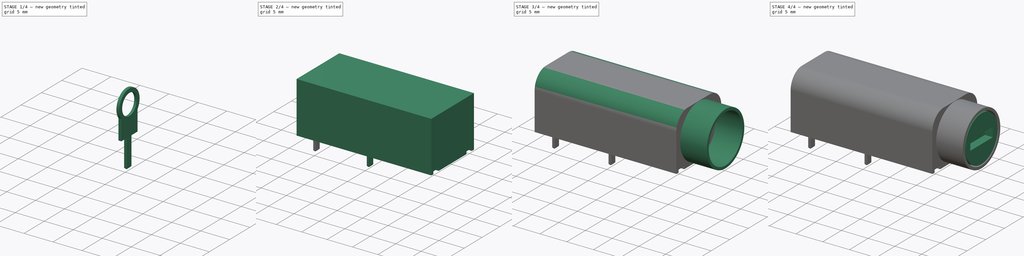
[diagram: build sequence overview — one tinted view per stage of 4, left to right]
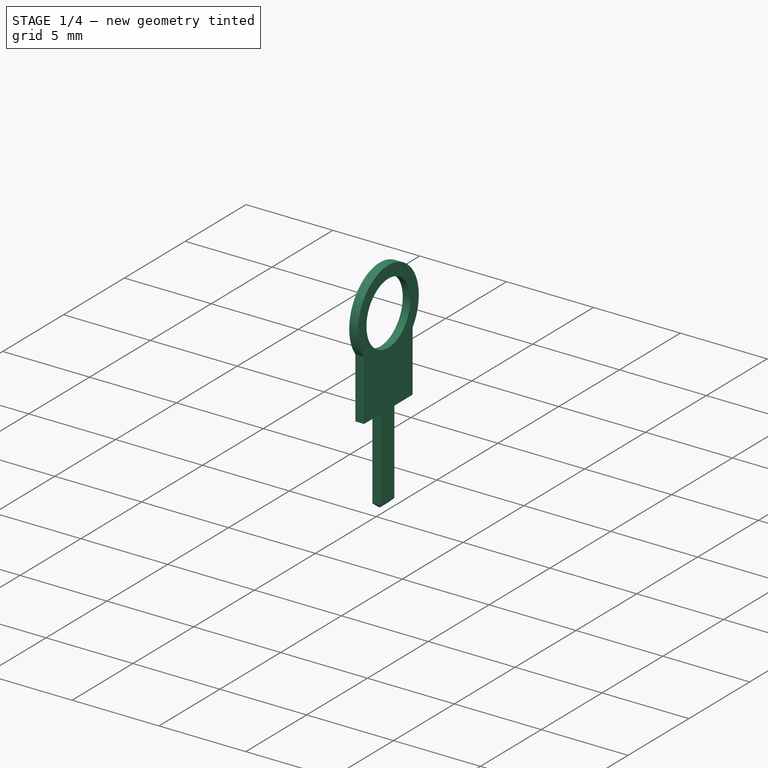
[diagram: stage 1 of 4 — iso view after this stage's code; geometry added in this stage tinted green]
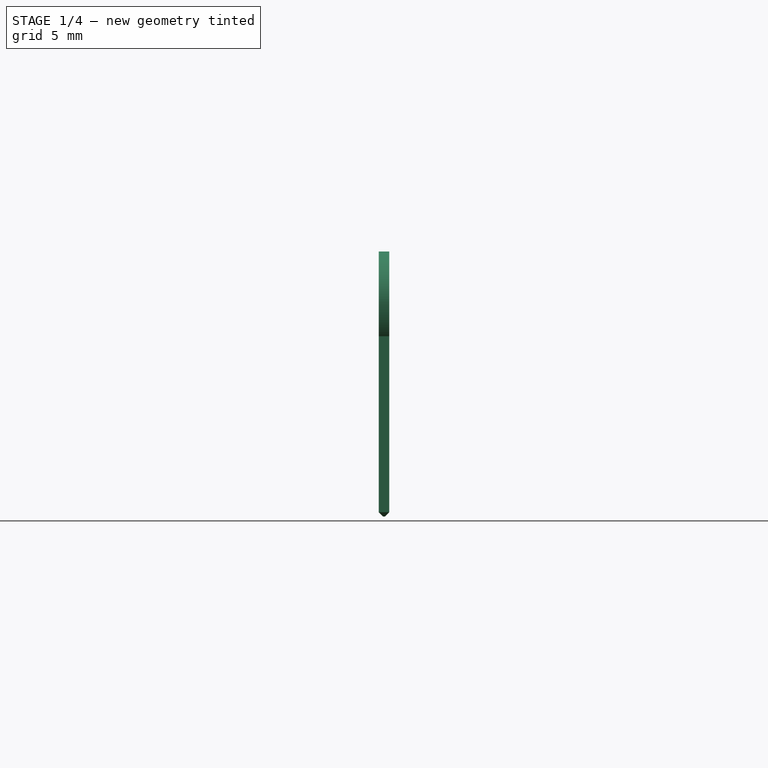
[diagram: stage 1 of 4 — front view after this stage's code; geometry added in this stage tinted green]
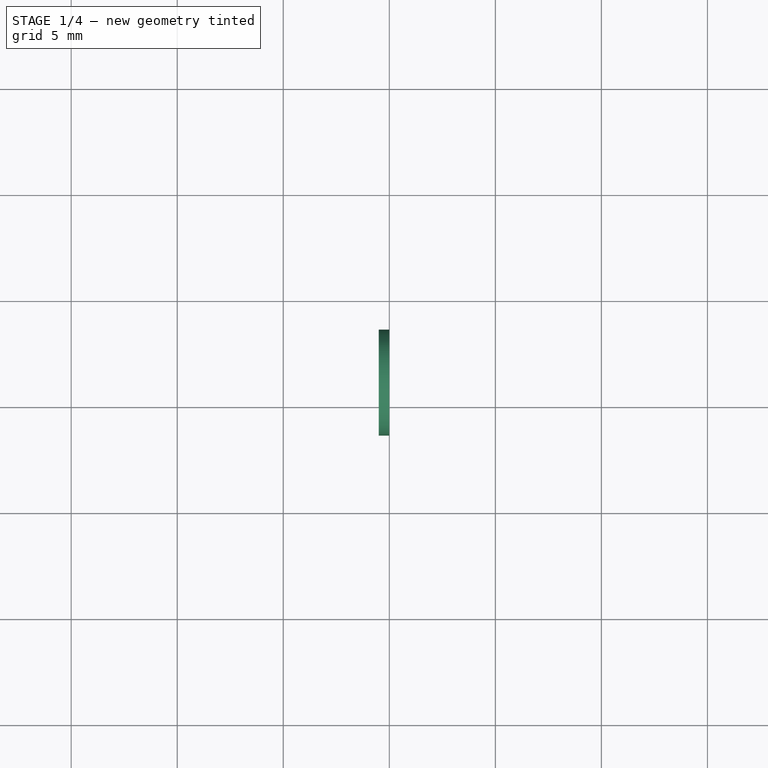
[diagram: stage 1 of 4 — top view after this stage's code; geometry added in this stage tinted green]
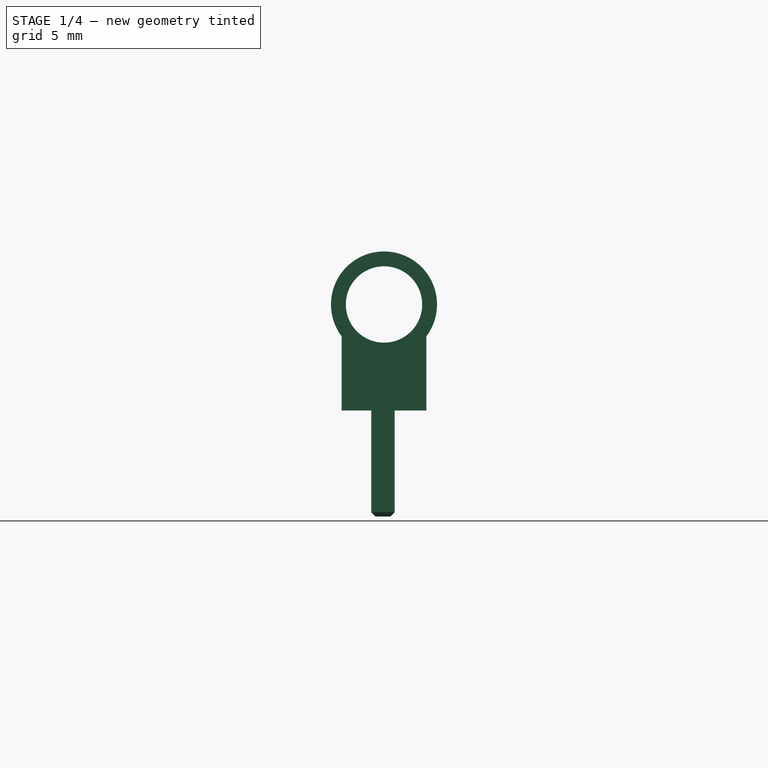
[diagram: stage 1 of 4 — right view after this stage's code; geometry added in this stage tinted green]
FCSTD DOCUMENT  (FreeCAD 0.17R12431 (Git))
Label: Fuseholder_Cylinder-5x20mm_Schurter_FAB_0031-355x_Horizontal_Closed
License: All rights reserved
LicenseURL: http://en.wikipedia.org/wiki/All_rights_reserved
objects: Sketcher::SketchObject×7, PartDesign::Pad×5, PartDesign::Body×3, PartDesign::Fillet×2, PartDesign::Pocket×2, PartDesign::ShapeBinder×2, PartDesign::Chamfer×2, App::Part×1
note: 30 computed .brp shape members not serialized (recipe doc carries the construction recipe); baked Part::Feature solids carry a one-line shape summary decoded from their .brp

FEATURE [PartDesign::ShapeBinder] CopyPocket
  Placement = pos=(0,0,0) rot=(0.57735,0.57735,0.57735;2.0944rad)
FEATURE [Sketcher::SketchObject] Sketch004
  MapMode = 5
  Placement = pos=(0,0,0) rot=(0.707107,0.707107,0;3.14159rad)
  Support = -> [CopyPocket]
  sketch-geometry (7):
    g0: LineSegment [constr] StartX=6 StartY=0 StartZ=0 EndX=6 EndY=10.25 EndZ=0
    g1: LineSegment [constr] StartX=6 StartY=10.25 StartZ=0 EndX=6 EndY=10.5 EndZ=0
    g2: LineSegment StartX=6 StartY=10.5 StartZ=0 EndX=6.55 EndY=10.5 EndZ=0
    g3: LineSegment StartX=6.55 StartY=10.5 StartZ=0 EndX=6.55 EndY=10 EndZ=0
    g4: LineSegment StartX=6.55 StartY=10 StartZ=0 EndX=5.45 EndY=10 EndZ=0
    g5: LineSegment StartX=5.45 StartY=10 StartZ=0 EndX=5.45 EndY=10.5 EndZ=0
    g6: LineSegment StartX=5.45 StartY=10.5 StartZ=0 EndX=6 EndY=10.5 EndZ=0
  constraints (20):
    c: PointOnObject(g0,g-1)
    c: Vertical(g0)
    c: DistanceY(g0,g0) = 10.25
    c: DistanceX(g-1,g0) = 6
    c: Coincident(g0,g1)
    c: Vertical(g1)
    c: Coincident(g1,g2)
    c: Horizontal(g2)
    c: Coincident(g2,g3)
    c: Vertical(g3)
    c: Coincident(g3,g4)
    c: Horizontal(g4)
    c: Coincident(g4,g5)
    c: Vertical(g5)
    c: Coincident(g5,g6)
    c: Coincident(g6,g1)
    c: Horizontal(g6)
    c: DistanceX(g4,g4) = 1.1
    c: DistanceY(g3,g3) = 0.5
    c: Symmetric(g2,g4,g0)
FEATURE [PartDesign::ShapeBinder] CopyPocket001
FEATURE [Sketcher::SketchObject] Sketch006
  MapMode = 5
  Placement = pos=(0,0,0) rot=(-0.57735,0.57735,0.57735;4.18879rad)
  Support = -> [CopyPocket001]
  sketch-geometry (9):
    g0: ArcOfCircle CenterX=-6 CenterY=5 CenterZ=0 NormalX=0 NormalY=0 NormalZ=1 AngleXU=0 Radius=2.5 StartAngle=5.63968 EndAngle=10.0683
    g1: LineSegment StartX=-8 StartY=3.5 StartZ=0 EndX=-8 EndY=0 EndZ=0
    g2: LineSegment StartX=-8 StartY=0 StartZ=0 EndX=-6.5 EndY=0 EndZ=0
    g3: LineSegment StartX=-6.5 StartY=0 StartZ=0 EndX=-6.5 EndY=-5 EndZ=0
    g4: LineSegment StartX=-6.5 StartY=-5 StartZ=0 EndX=-5.4 EndY=-5 EndZ=0
    g5: LineSegment StartX=-5.4 StartY=-5 StartZ=0 EndX=-5.4 EndY=0 EndZ=0
    g6: LineSegment StartX=-5.4 StartY=0 StartZ=0 EndX=-4 EndY=0 EndZ=0
    g7: LineSegment StartX=-4 StartY=0 StartZ=0 EndX=-4 EndY=3.5 EndZ=0
    g8: Circle CenterX=-6 CenterY=5 CenterZ=0 NormalX=0 NormalY=0 NormalZ=1 AngleXU=0 Radius=1.8
  constraints (27):
    c: DistanceX(g0,g-1) = 6
    c: DistanceY(g-1,g0) = 5
    c: Radius(g0) = 2.5
    c: PointOnObject(g1,g-1)
    c: Vertical(g1)
    c: Coincident(g1,g2)
    c: PointOnObject(g2,g-1)
    c: Coincident(g2,g3)
    c: Vertical(g3)
    c: Coincident(g3,g4)
    c: Horizontal(g4)
    c: Coincident(g4,g5)
    c: PointOnObject(g5,g-1)
    c: Vertical(g5)
    c: Coincident(g5,g6)
    c: PointOnObject(g6,g-1)
    c: Coincident(g6,g7)
    c: Vertical(g7)
    c: DistanceX(g1,g6) = 4
    c: DistanceX(g4,g4) = 1.1
    c: DistanceY(g3,g3) = 5
    c: Coincident(g0,g7)
    c: Coincident(g0,g1)
    c: DistanceX(g1,g2) = 1.5
    c: Equal(g1,g7)
    c: Coincident(g8,g0)
    c: Radius(g8) = 1.8
FEATURE [PartDesign::Pad] Pad004
  Length = 0.5
  Length2 = 100
  Profile = -> Sketch006
  Type = 0
FEATURE [PartDesign::Body] Body002  label="Pin 2"
  Group = -> [CopyPocket,Sketch004,Pad005,Chamfer]
  Origin = -> Origin003
  Tip = -> Chamfer
FEATURE [PartDesign::Fillet] Fillet001
  Base = -> Pad004 [Edge27]
  BaseFeature = -> Pad004
  Radius = 0.15
FEATURE [PartDesign::Chamfer] Chamfer001
  Base = -> Fillet001 [Face9]
  BaseFeature = -> Fillet001
  Size = 0.2
FEATURE [PartDesign::Body] Body003  label="Pin 1"
  Group = -> [CopyPocket001,Sketch006,Pad004,Fillet001,Chamfer001]
  Origin = -> Origin004
  Placement = pos=(0.5,0,0) rot=(0,0,1;0rad)
  Tip = -> Chamfer001
FEATURE [App::Part] Part  label="Fuseholder"
  Group = -> [Body,Body002,Body003]
  License = CC BY 3.0
  LicenseURL = http://creativecommons.org/licenses/by/3.0/
  Origin = -> Origin
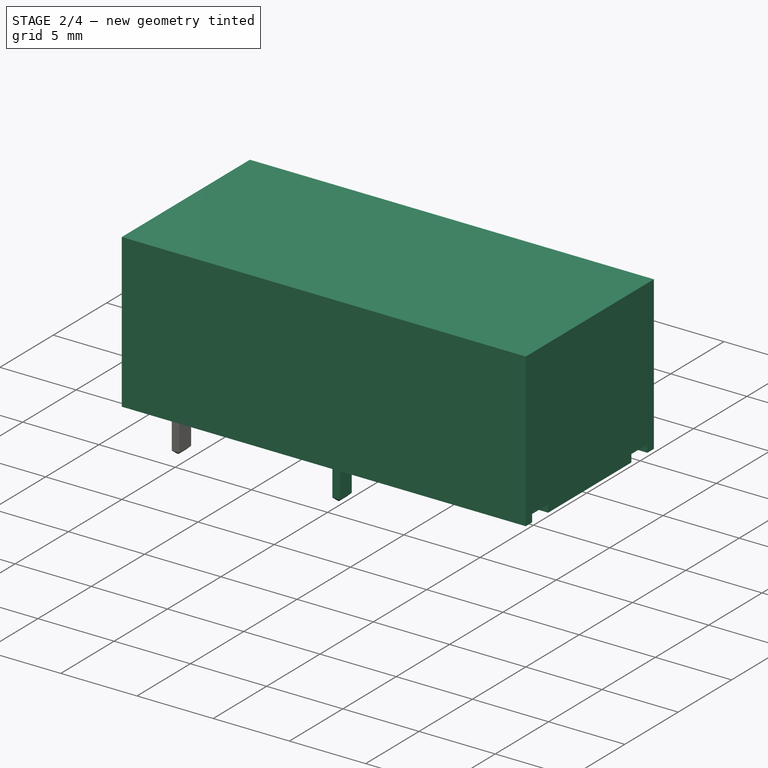
[diagram: stage 2 of 4 — iso view after this stage's code; geometry added in this stage tinted green]
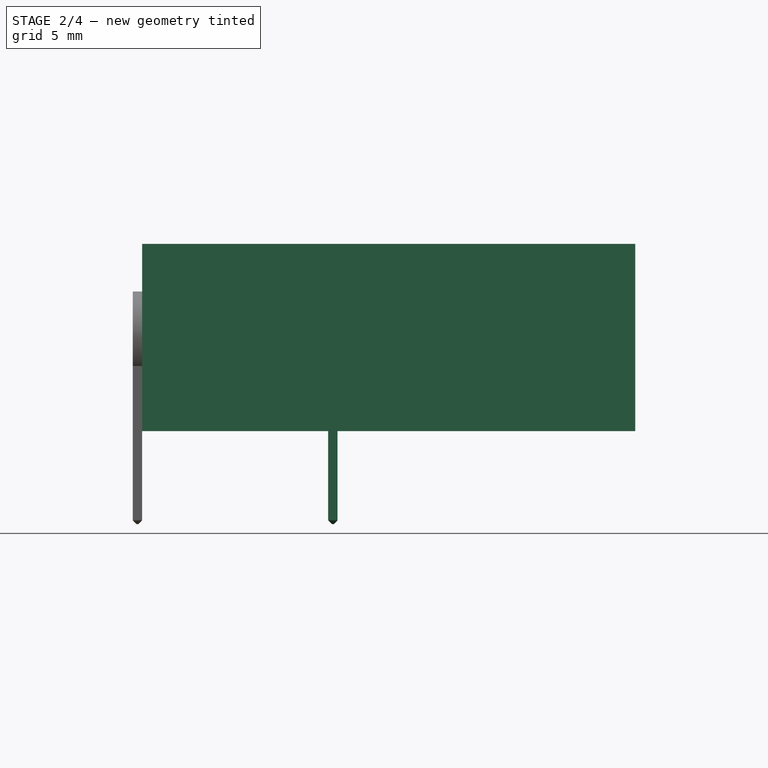
[diagram: stage 2 of 4 — front view after this stage's code; geometry added in this stage tinted green]
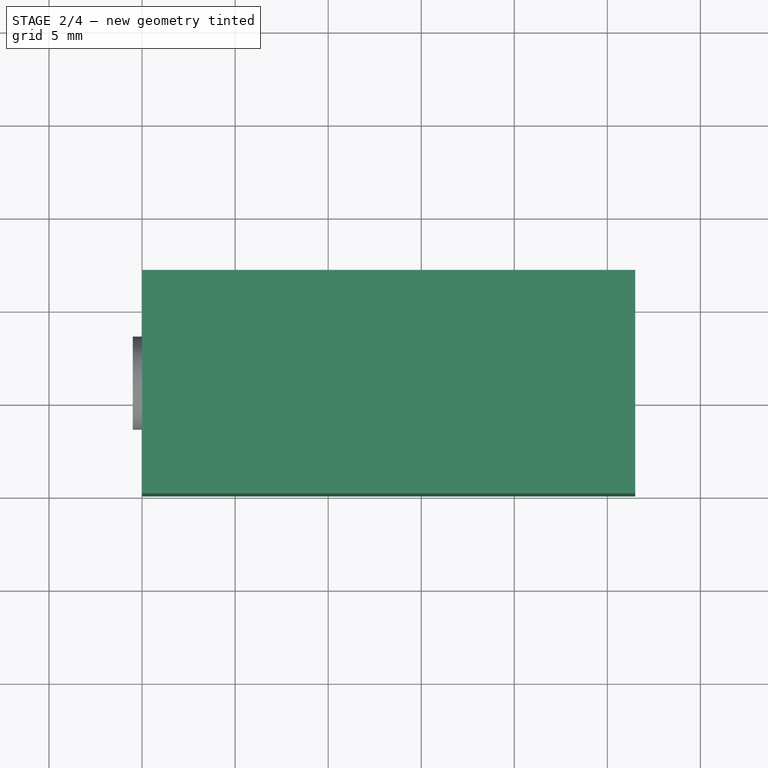
[diagram: stage 2 of 4 — top view after this stage's code; geometry added in this stage tinted green]
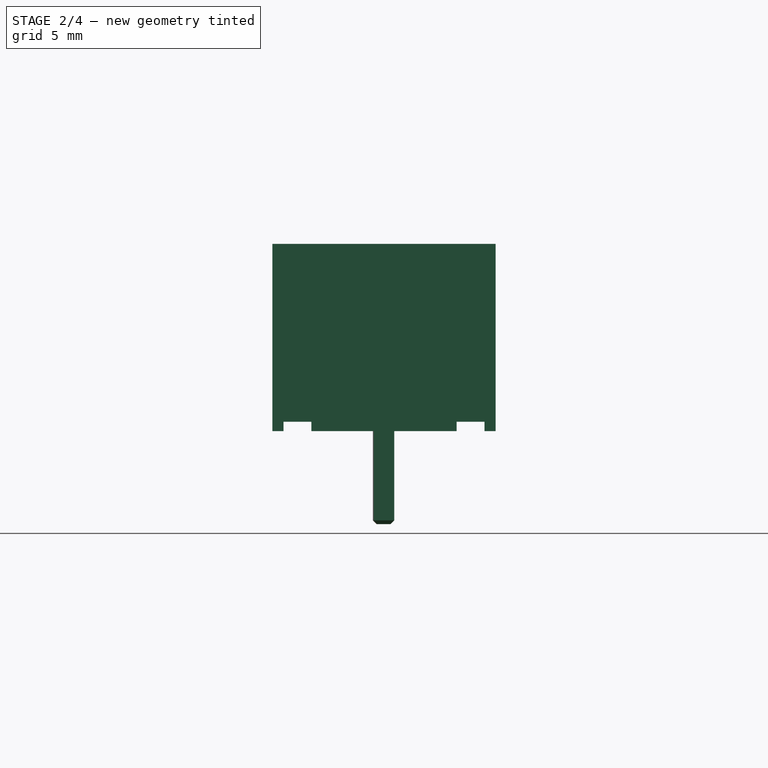
[diagram: stage 2 of 4 — right view after this stage's code; geometry added in this stage tinted green]
FEATURE [Sketcher::SketchObject] Sketch
  MapMode = 5
  Placement = pos=(0,0,0) rot=(0.57735,0.57735,0.57735;2.0944rad)
  Support = -> [YZ_Plane001]
  sketch-geometry (12):
    g0: LineSegment StartX=0 StartY=0 StartZ=0 EndX=0.6 EndY=0 EndZ=0
    g1: LineSegment StartX=0.6 StartY=0 StartZ=0 EndX=0.6 EndY=0.5 EndZ=0
    g2: LineSegment StartX=0.6 StartY=0.5 StartZ=0 EndX=2.1 EndY=0.5 EndZ=0
    g3: LineSegment StartX=2.1 StartY=0.5 StartZ=0 EndX=2.1 EndY=0 EndZ=0
    g4: LineSegment StartX=2.1 StartY=0 StartZ=0 EndX=9.9 EndY=0 EndZ=0
    g5: LineSegment StartX=12 StartY=0 StartZ=0 EndX=12 EndY=10.06 EndZ=0
    g6: LineSegment StartX=12 StartY=10.06 StartZ=0 EndX=0 EndY=10.06 EndZ=0
    g7: LineSegment StartX=0 StartY=10.06 StartZ=0 EndX=0 EndY=0 EndZ=0
    g8: LineSegment StartX=9.9 StartY=0 StartZ=0 EndX=9.9 EndY=0.5 EndZ=0
    g9: LineSegment StartX=9.9 StartY=0.5 StartZ=0 EndX=11.4 EndY=0.5 EndZ=0
    g10: LineSegment StartX=11.4 StartY=0.5 StartZ=0 EndX=11.4 EndY=0 EndZ=0
    g11: LineSegment StartX=11.4 StartY=0 StartZ=0 EndX=12 EndY=0 EndZ=0
  constraints (34):
    c: Coincident(g-1,g0)
    c: PointOnObject(g0,g-1)
    c: Coincident(g0,g1)
    c: Vertical(g1)
    c: Coincident(g1,g2)
    c: Horizontal(g2)
    c: Coincident(g2,g3)
    c: Coincident(g3,g4)
    c: Horizontal(g4)
    c: Coincident(g11,g5)
    c: Vertical(g5)
    c: Coincident(g5,g6)
    c: PointOnObject(g6,g-2)
    c: Horizontal(g6)
    c: Coincident(g6,g7)
    c: Coincident(g7,g0)
    c: DistanceX(g6,g6) = 12
    c: DistanceY(g7,g7) = 10.06
    c: Vertical(g8)
    c: Coincident(g8,g9)
    c: Horizontal(g9)
    c: Coincident(g9,g10)
    c: Coincident(g4,g8)
    c: Coincident(g11,g10)
    c: Tangent(g4,g11)
    c: Equal(g2,g9)
    c: Vertical(g3)
    c: Horizontal(g2,g8)
    c: Vertical(g10)
    c: DistanceX(g0,g0) = 0.6
    c: DistanceX(g11,g11) = 0.6
    c: DistanceY(g3,g3) = 0.5
    c: DistanceX(g2,g2) = 1.5
    c: Horizontal(g3,g0)
FEATURE [PartDesign::Pad] Pad
  Length = 26.5
  Length2 = 100
  Placement = pos=(0,0,0) rot=(0.57735,0.57735,0.57735;2.0944rad)
  Profile = -> Sketch
  Type = 0
FEATURE [PartDesign::Pad] Pad005
  Length = 5
  Length2 = 100
  Placement = pos=(0,0,0) rot=(0.57735,0.57735,0.57735;2.0944rad)
  Profile = -> Sketch004
  Type = 0
FEATURE [PartDesign::Body] Body
  Group = -> [Sketch,Pad,Fillet,Sketch001,Pad001,Sketch002,Pad002,Sketch003,Pocket,Sketch007,Pocket001]
  Origin = -> Origin001
  Tip = -> Pad
FEATURE [PartDesign::Chamfer] Chamfer
  Base = -> Pad005 [Face7]
  BaseFeature = -> Pad005
  Placement = pos=(0,0,0) rot=(0.57735,0.57735,0.57735;2.0944rad)
  Size = 0.2
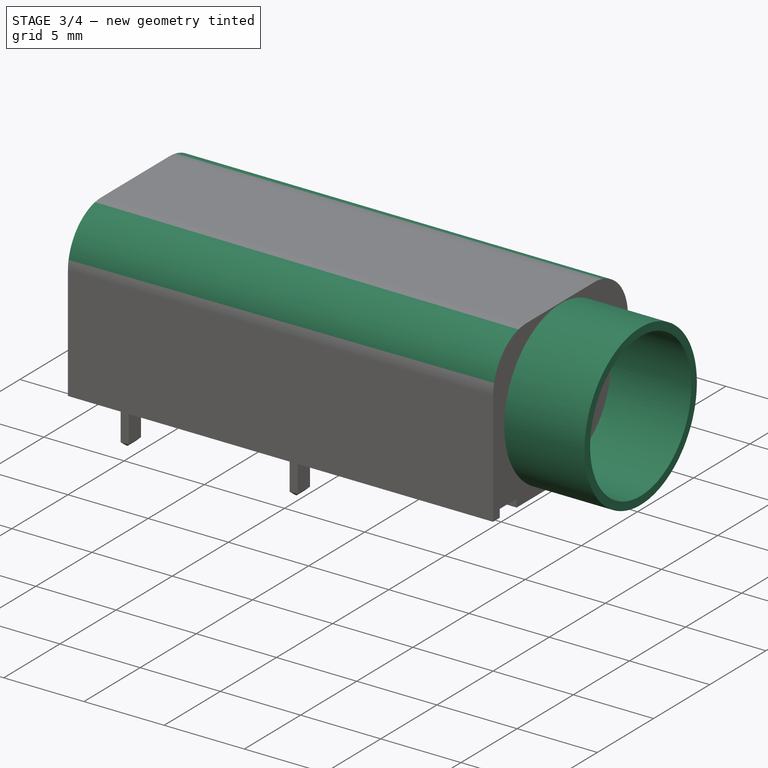
[diagram: stage 3 of 4 — iso view after this stage's code; geometry added in this stage tinted green]
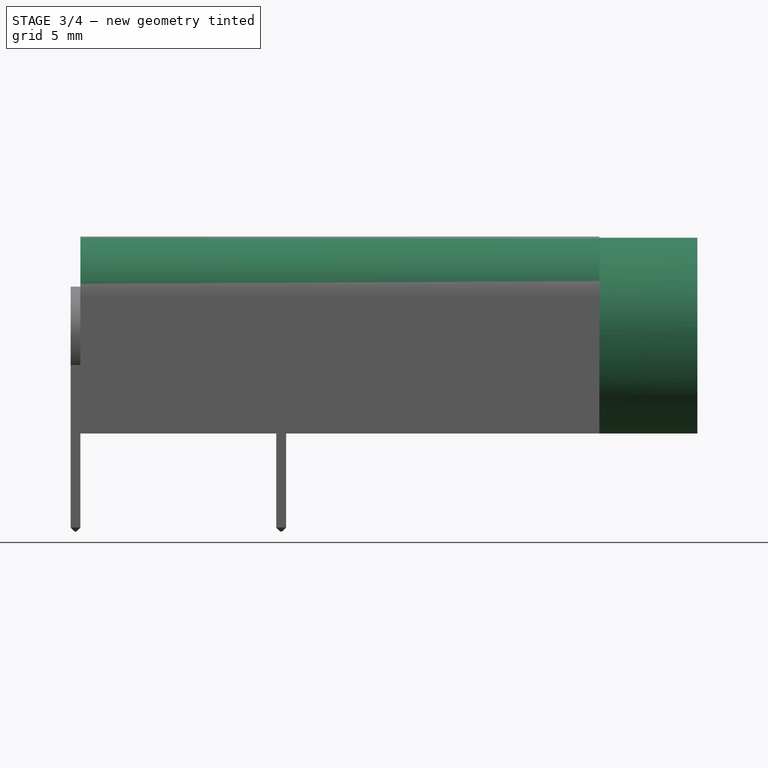
[diagram: stage 3 of 4 — front view after this stage's code; geometry added in this stage tinted green]
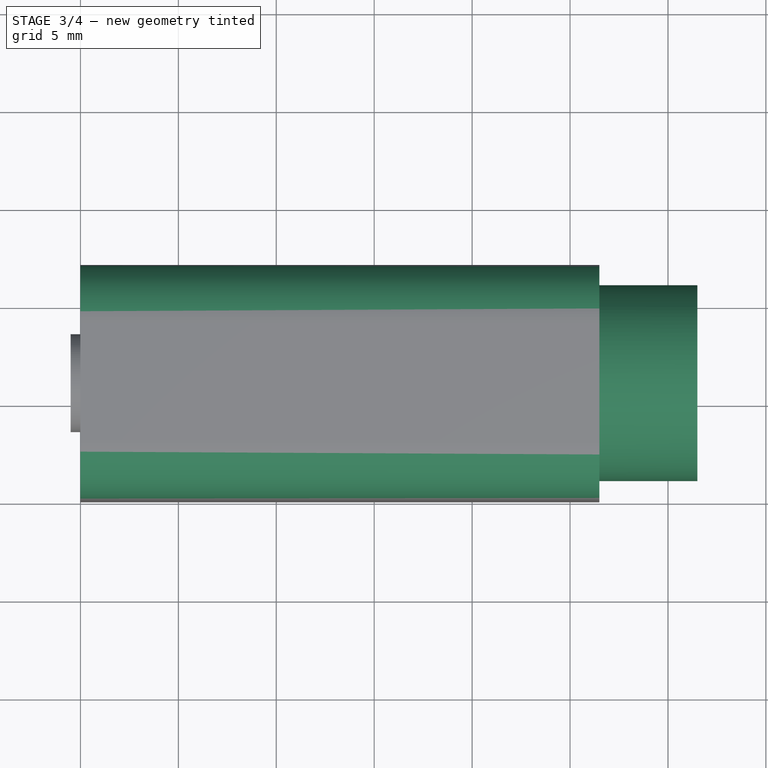
[diagram: stage 3 of 4 — top view after this stage's code; geometry added in this stage tinted green]
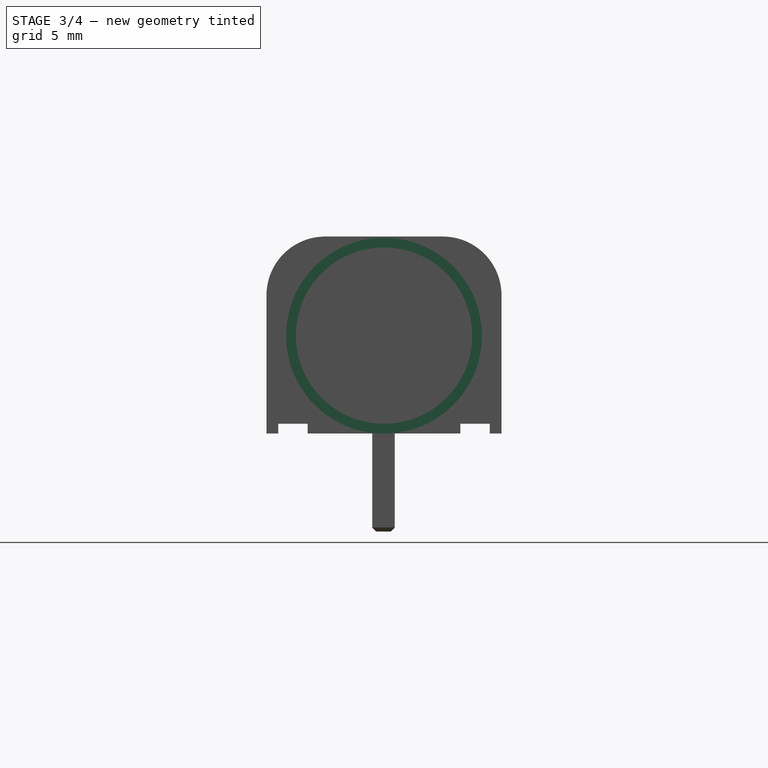
[diagram: stage 3 of 4 — right view after this stage's code; geometry added in this stage tinted green]
FEATURE [PartDesign::Fillet] Fillet
  Base = -> Pad [Edge32,Edge29]
  BaseFeature = -> Pad
  Placement = pos=(0,0,0) rot=(0.57735,0.57735,0.57735;2.0944rad)
  Radius = 3
FEATURE [Sketcher::SketchObject] Sketch001
  MapMode = 5
  Placement = pos=(26.5,0,0) rot=(0.57735,0.57735,0.57735;2.0944rad)
  Support = -> [Fillet]
  sketch-geometry (2):
    g0: Circle CenterX=6 CenterY=5 CenterZ=0 NormalX=0 NormalY=0 NormalZ=1 AngleXU=0 Radius=5
    g1: Circle CenterX=6 CenterY=5 CenterZ=0 NormalX=0 NormalY=0 NormalZ=1 AngleXU=0 Radius=4.5
  constraints (5):
    c: DistanceY(g-1,g0) = 5
    c: DistanceX(g-1,g0) = 6
    c: Coincident(g1,g0)
    c: Radius(g1) = 4.5
    c: Radius(g0) = 5
FEATURE [PartDesign::Pad] Pad001
  BaseFeature = -> Fillet
  Length = 5
  Length2 = 100
  Placement = pos=(0,0,0) rot=(0.57735,0.57735,0.57735;2.0944rad)
  Profile = -> Sketch001
  Type = 0
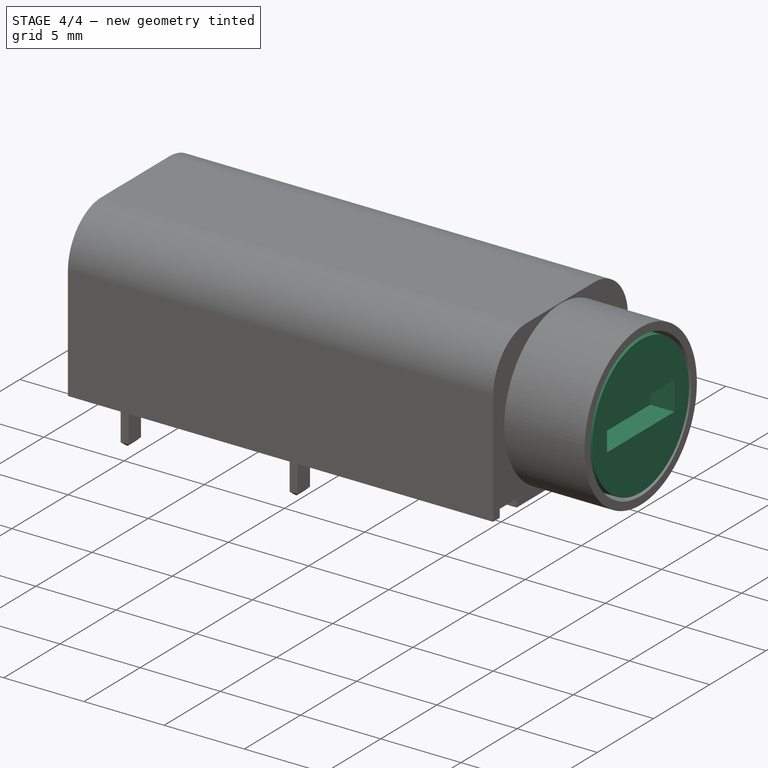
[diagram: stage 4 of 4 — iso view after this stage's code; geometry added in this stage tinted green]
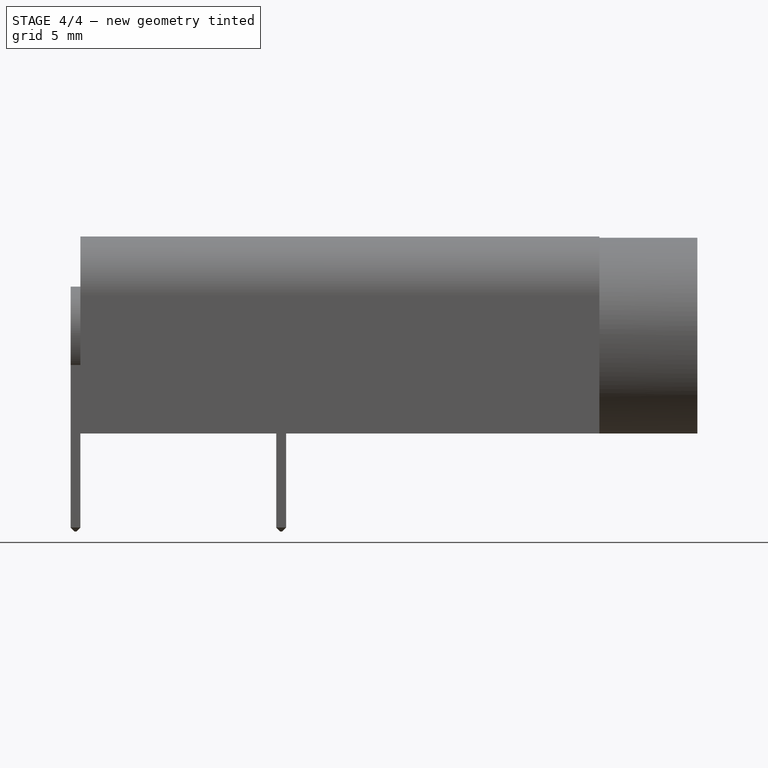
[diagram: stage 4 of 4 — front view after this stage's code; geometry added in this stage tinted green]
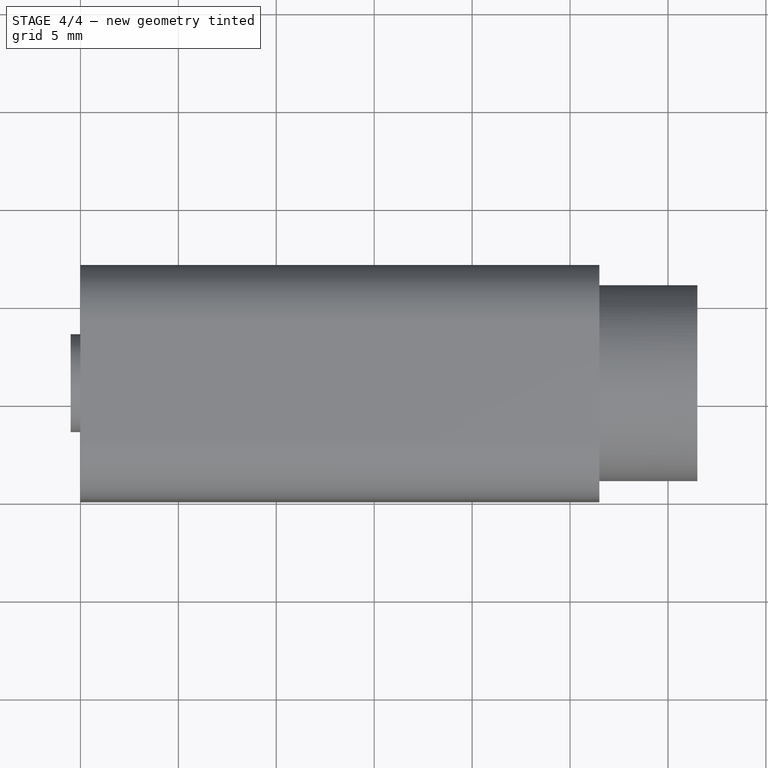
[diagram: stage 4 of 4 — top view after this stage's code; geometry added in this stage tinted green]
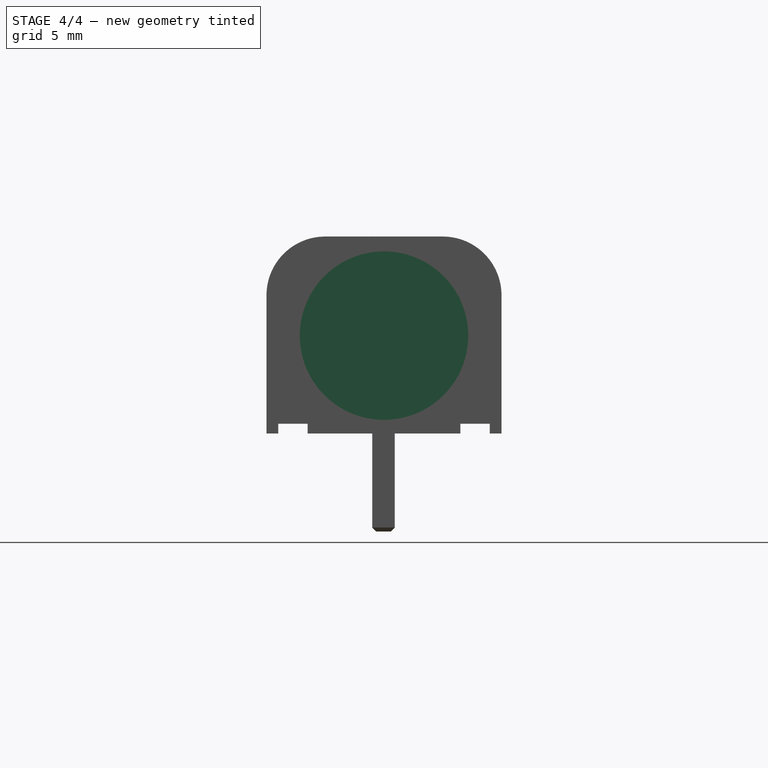
[diagram: stage 4 of 4 — right view after this stage's code; geometry added in this stage tinted green]
FEATURE [Sketcher::SketchObject] Sketch002
  MapMode = 5
  Placement = pos=(26.5,0,0) rot=(0.57735,0.57735,0.57735;2.0944rad)
  Support = -> [Pad001]
  sketch-geometry (1):
    g0: Circle CenterX=6 CenterY=5 CenterZ=0 NormalX=0 NormalY=0 NormalZ=1 AngleXU=0 Radius=4.3
  constraints (3):
    c: DistanceX(g-1,g0) = 6
    c: DistanceY(g-1,g0) = 5
    c: Radius(g0) = 4.3
FEATURE [PartDesign::Pad] Pad002
  BaseFeature = -> Pad001
  Length = 5
  Length2 = 100
  Placement = pos=(0,0,0) rot=(0.57735,0.57735,0.57735;2.0944rad)
  Profile = -> Sketch002
  Type = 0
FEATURE [Sketcher::SketchObject] Sketch003
  MapMode = 5
  Placement = pos=(31.5,0,0) rot=(0.57735,0.57735,0.57735;2.0944rad)
  Support = -> [Pad002]
  sketch-geometry (4):
    g0: LineSegment StartX=3 StartY=5.9 StartZ=0 EndX=9 EndY=5.9 EndZ=0
    g1: LineSegment StartX=9 StartY=5.9 StartZ=0 EndX=9 EndY=4.1 EndZ=0
    g2: LineSegment StartX=9 StartY=4.1 StartZ=0 EndX=3 EndY=4.1 EndZ=0
    g3: LineSegment StartX=3 StartY=4.1 StartZ=0 EndX=3 EndY=5.9 EndZ=0
  constraints (12):
    c: Coincident(g0,g1)
    c: Coincident(g1,g2)
    c: Coincident(g2,g3)
    c: Coincident(g3,g0)
    c: Horizontal(g0)
    c: Horizontal(g2)
    c: Vertical(g1)
    c: Vertical(g3)
    c: DistanceY(g3,g3) = 1.8
    c: DistanceX(g0,g0) = 6
    c: DistanceX(g-1,g2) = 3
    c: DistanceY(g-1,g2) = 4.1
FEATURE [PartDesign::Pocket] Pocket
  BaseFeature = -> Pad002
  Length = 1.5
  Placement = pos=(0,0,0) rot=(0.57735,0.57735,0.57735;2.0944rad)
  Profile = -> Sketch003
  Type = 0
FEATURE [Sketcher::SketchObject] Sketch007
  MapMode = 5
  Placement = pos=(0,0,0) rot=(0.57735,0.57735,-0.57735;4.18879rad)
  Support = -> [Pocket]
  sketch-geometry (4):
    g0: ArcOfCircle CenterX=6 CenterY=-5 CenterZ=0 NormalX=0 NormalY=0 NormalZ=1 AngleXU=0 Radius=2.6 StartAngle=2.51102 EndAngle=6.91375
    g1: LineSegment StartX=3.9 StartY=-3.46703 StartZ=0 EndX=3.9 EndY=0 EndZ=0
    g2: LineSegment StartX=3.9 StartY=0 StartZ=0 EndX=8.1 EndY=0 EndZ=0
    g3: LineSegment StartX=8.1 StartY=0 StartZ=0 EndX=8.1 EndY=-3.46703 EndZ=0
  constraints (13):
    c: DistanceX(g-1,g0) = 6
    c: DistanceY(g0,g-1) = 5
    c: Radius(g0) = 2.6
    c: Vertical(g1)
    c: Coincident(g1,g2)
    c: Horizontal(g2)
    c: Coincident(g2,g3)
    c: Vertical(g3)
    c: DistanceX(g2,g2) = 4.2
    c: Horizontal(g1,g-1)
    c: DistanceX(g-1,g1) = 3.9
    c: Coincident(g0,g1)
    c: Coincident(g0,g3)
FEATURE [PartDesign::Pocket] Pocket001
  BaseFeature = -> Pocket
  Length = 0.5
  Placement = pos=(0,0,0) rot=(0.57735,0.57735,0.57735;2.0944rad)
  Profile = -> Sketch007
  Type = 0
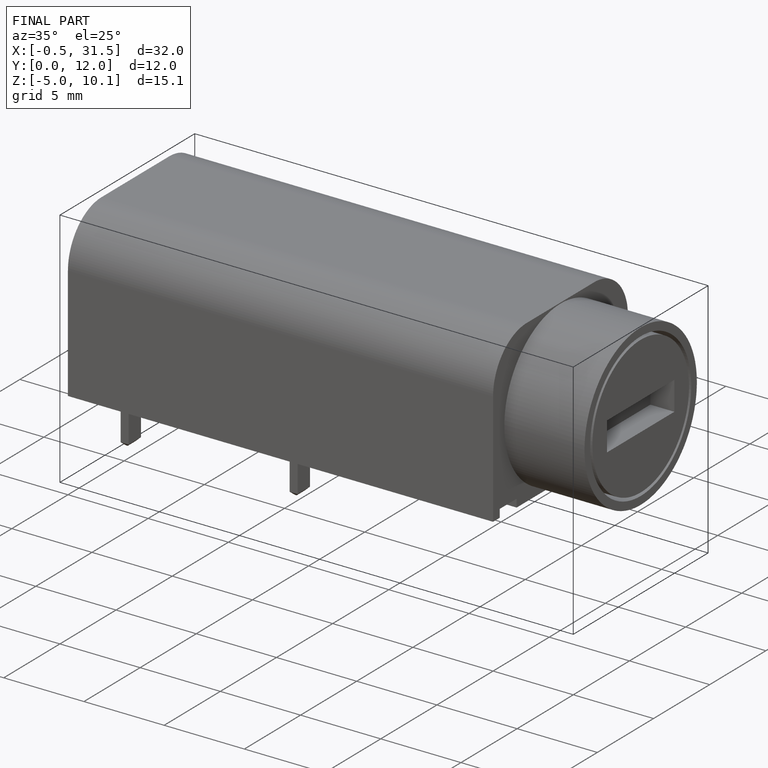
[diagram: finished part — iso view with bounding-box wireframe]
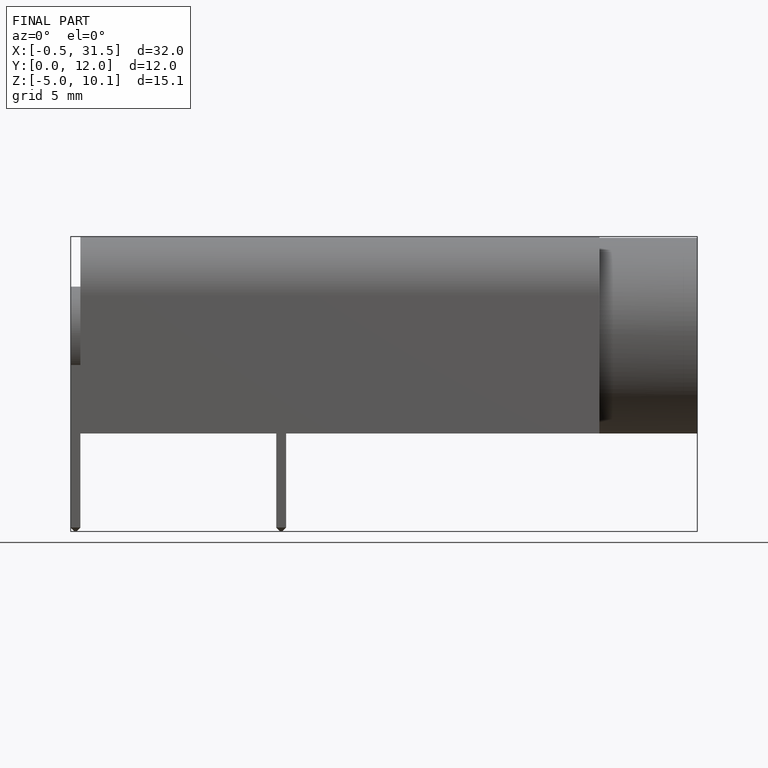
[diagram: finished part — front view with bounding-box wireframe]
